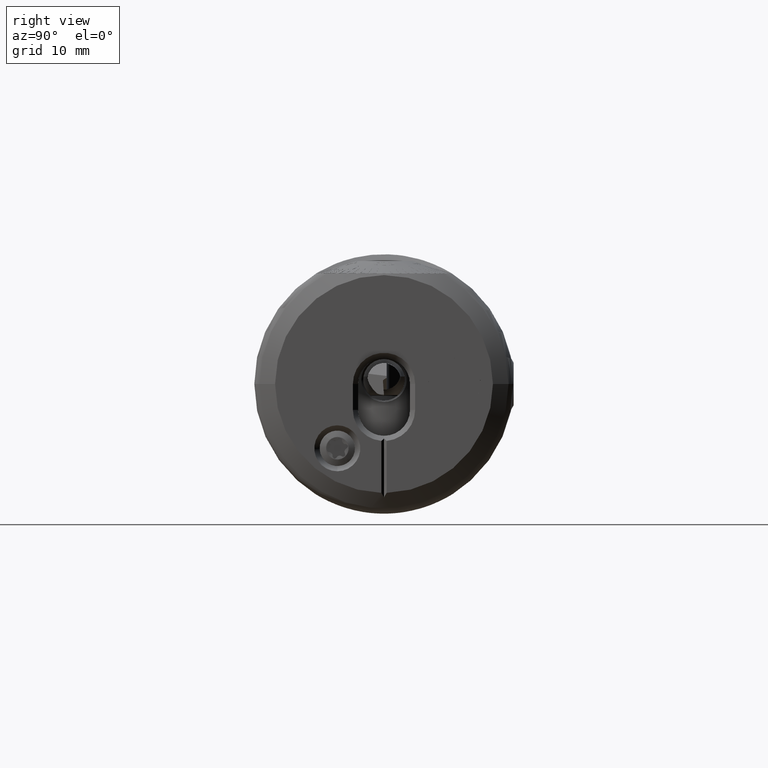
[diagram: clean part render]
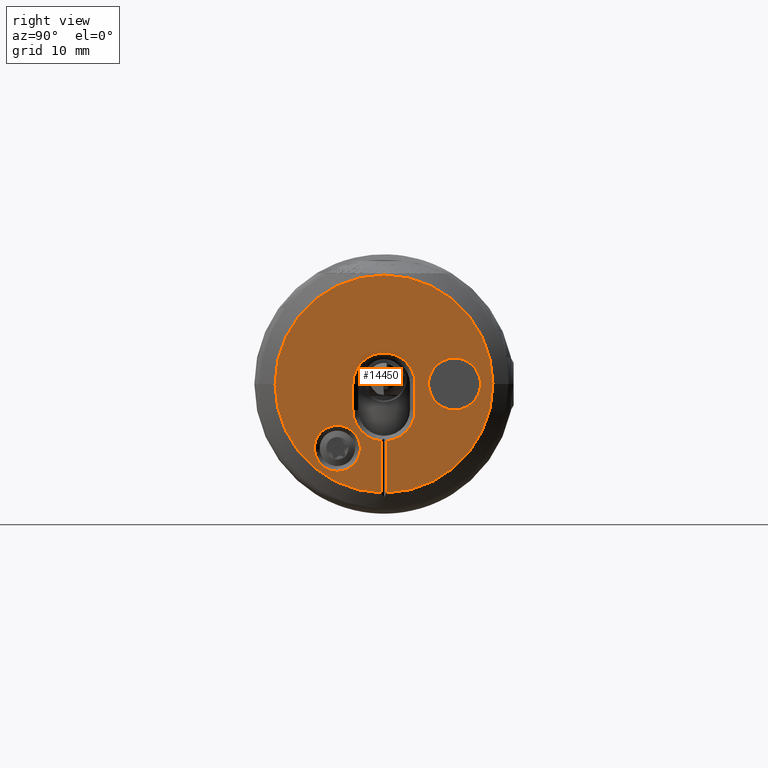
[diagram: same view with one face highlighted and labeled with its STEP entity id]
A machine part, right view. The second image highlights one B-rep face of the part: STEP entity #14450.
In plain terms, the highlighted planar face has unit normal (1, -0, 0).
Its self-contained STEP definition (entity closure, byte-faithful):
#12 = EDGE_LOOP ( 'NONE', ( #20260, #26900 ) ) ;
#275 = ORIENTED_EDGE ( 'NONE', *, *, #25261, .T. ) ;
#429 = CARTESIAN_POINT ( 'NONE',  ( -9.789515841779434600E-032, -3.000000000000009800, -1.951563910473908000E-015 ) ) ;
#894 = VERTEX_POINT ( 'NONE', #4654 ) ;
#1075 = CARTESIAN_POINT ( 'NONE',  ( 6.123031769111877700E-017, 6.799999999999999800, 0.0000000000000000000 ) ) ;
#1113 = EDGE_CURVE ( 'NONE', #28365, #12152, #9417, .T. ) ;
#1463 = CARTESIAN_POINT ( 'NONE',  ( -6.776263578034402700E-017, 0.2499999999999999400, -10.49702338760850900 ) ) ;
#1561 = EDGE_CURVE ( 'NONE', #4854, #11744, #11368, .T. ) ;
#1569 = DIRECTION ( 'NONE',  ( 1.186607980821748200E-032, 1.000000000000000000, 0.0000000000000000000 ) ) ;
#1689 = DIRECTION ( 'NONE',  ( 1.000000000000000000, -1.186607980821748300E-032, -0.0000000000000000000 ) ) ;
#1728 = ORIENTED_EDGE ( 'NONE', *, *, #3567, .T. ) ;
#1830 = EDGE_CURVE ( 'NONE', #11744, #4854, #24223, .T. ) ;
#2206 = ORIENTED_EDGE ( 'NONE', *, *, #19292, .T. ) ;
#2418 = CARTESIAN_POINT ( 'NONE',  ( 0.0000000000000000000, -0.2500000000000000600, -5.489565185775361100 ) ) ;
#2623 = CIRCLE ( 'NONE', #21409, 10.50000000000000000 ) ;
#2944 = DIRECTION ( 'NONE',  ( 0.0000000000000000000, 0.0000000000000000000, 1.000000000000000000 ) ) ;
#3014 = ORIENTED_EDGE ( 'NONE', *, *, #4875, .F. ) ;
#3016 = CARTESIAN_POINT ( 'NONE',  ( 0.0000000000000000000, -4.500000000000001800, -6.200000000000000200 ) ) ;
#3262 = ORIENTED_EDGE ( 'NONE', *, *, #27154, .T. ) ;
#3567 = EDGE_CURVE ( 'NONE', #22582, #894, #2623, .T. ) ;
#3605 = DIRECTION ( 'NONE',  ( 0.0000000000000000000, 0.0000000000000000000, -1.000000000000000000 ) ) ;
#3794 = FACE_BOUND ( 'NONE', #12, .T. ) ;
#4047 = AXIS2_PLACEMENT_3D ( 'NONE', #19571, #4602, #22072 ) ;
#4602 = DIRECTION ( 'NONE',  ( 1.000000000000000000, -1.186607980821748300E-032, -0.0000000000000000000 ) ) ;
#4654 = CARTESIAN_POINT ( 'NONE',  ( -1.245938379862835700E-031, -10.50000000000000000, 0.0000000000000000000 ) ) ;
#4854 = VERTEX_POINT ( 'NONE', #22579 ) ;
#4875 = EDGE_CURVE ( 'NONE', #6226, #30493, #17097, .T. ) ;
#4985 = ORIENTED_EDGE ( 'NONE', *, *, #23018, .T. ) ;
#5181 = LINE ( 'NONE', #8061, #30986 ) ;
#5208 = CARTESIAN_POINT ( 'NONE',  ( 6.123031769111877700E-017, 6.799999999999999800, 0.0000000000000000000 ) ) ;
#5492 = PLANE ( 'NONE',  #6372 ) ;
#6226 = VERTEX_POINT ( 'NONE', #15098 ) ;
#6258 = DIRECTION ( 'NONE',  ( -1.000000000000000000, 1.186607980821748300E-032, 0.0000000000000000000 ) ) ;
#6372 = AXIS2_PLACEMENT_3D ( 'NONE', #12949, #8023, #25501 ) ;
#6542 = CARTESIAN_POINT ( 'NONE',  ( 6.123031769111877700E-017, 6.799999999999999800, -2.499999999999996000 ) ) ;
#6589 = DIRECTION ( 'NONE',  ( 1.000000000000000000, -1.186607980821748300E-032, -0.0000000000000000000 ) ) ;
#6595 = CARTESIAN_POINT ( 'NONE',  ( -6.229691899314178600E-032, 0.0000000000000000000, -1.951563910473908000E-015 ) ) ;
#6737 = CIRCLE ( 'NONE', #4047, 10.50000000000000000 ) ;
#7297 = CARTESIAN_POINT ( 'NONE',  ( 1.245938379862835700E-031, 10.50000000000000000, 1.285879139104720800E-015 ) ) ;
#7572 = CARTESIAN_POINT ( 'NONE',  ( -2.669867956848922600E-032, 3.000000000000009800, -1.951563910473908000E-015 ) ) ;
#7733 = DIRECTION ( 'NONE',  ( 0.0000000000000000000, 0.0000000000000000000, -1.000000000000000000 ) ) ;
#8023 = DIRECTION ( 'NONE',  ( 1.000000000000000000, -1.186607980821748300E-032, -0.0000000000000000000 ) ) ;
#8061 = CARTESIAN_POINT ( 'NONE',  ( -2.669867956848922600E-032, 3.000000000000009800, -2.500000000000002200 ) ) ;
#8207 = EDGE_CURVE ( 'NONE', #26635, #28761, #18504, .T. ) ;
#9048 = LINE ( 'NONE', #18650, #14902 ) ;
#9117 = DIRECTION ( 'NONE',  ( 1.186607980821748200E-032, 1.000000000000000000, 0.0000000000000000000 ) ) ;
#9417 = LINE ( 'NONE', #21512, #30097 ) ;
#11145 = ORIENTED_EDGE ( 'NONE', *, *, #22258, .F. ) ;
#11368 = CIRCLE ( 'NONE', #24532, 2.216025403784425100 ) ;
#11744 = VERTEX_POINT ( 'NONE', #18328 ) ;
#12152 = VERTEX_POINT ( 'NONE', #29114 ) ;
#12675 = EDGE_LOOP ( 'NONE', ( #11145, #3014 ) ) ;
#12949 = CARTESIAN_POINT ( 'NONE',  ( -6.229691899314178600E-032, 7.392202125786799700E-064, 0.0000000000000000000 ) ) ;
#14450 = ADVANCED_FACE ( 'NONE', ( #3794, #22960, #17118 ), #5492, .T. ) ;
#14653 = EDGE_CURVE ( 'NONE', #31400, #12152, #25691, .T. ) ;
#14902 = VECTOR ( 'NONE', #21126, 1000.000000000000000 ) ;
#15098 = CARTESIAN_POINT ( 'NONE',  ( 6.123031769111877700E-017, 6.799999999999999800, 2.499999999999996400 ) ) ;
#15107 = CIRCLE ( 'NONE', #25120, 10.50000000000000000 ) ;
#15972 = AXIS2_PLACEMENT_3D ( 'NONE', #6595, #24067, #9117 ) ;
#16382 = VERTEX_POINT ( 'NONE', #7572 ) ;
#16609 = DIRECTION ( 'NONE',  ( -1.000000000000000000, 1.186607980821748300E-032, 0.0000000000000000000 ) ) ;
#16735 = CARTESIAN_POINT ( 'NONE',  ( 0.0000000000000000000, -6.161129402480670500E-031, 0.0000000000000000000 ) ) ;
#17097 = CIRCLE ( 'NONE', #27952, 2.499999999999996000 ) ;
#17118 = FACE_BOUND ( 'NONE', #12675, .T. ) ;
#17908 = DIRECTION ( 'NONE',  ( 0.0000000000000000000, 0.0000000000000000000, -1.000000000000000000 ) ) ;
#17951 = DIRECTION ( 'NONE',  ( 1.000000000000000000, -0.0000000000000000000, -0.0000000000000000000 ) ) ;
#18328 = CARTESIAN_POINT ( 'NONE',  ( 0.0000000000000000000, -4.500000000000001800, -3.983974596215574600 ) ) ;
#18337 = CARTESIAN_POINT ( 'NONE',  ( 0.0000000000000000000, -4.500000000000001800, -6.200000000000000200 ) ) ;
#18504 = CIRCLE ( 'NONE', #21497, 3.000000000000009800 ) ;
#18593 = CARTESIAN_POINT ( 'NONE',  ( -9.789515841779434600E-032, -3.000000000000009800, -1.951563910473908000E-015 ) ) ;
#18607 = DIRECTION ( 'NONE',  ( 1.000000000000000000, -0.0000000000000000000, -0.0000000000000000000 ) ) ;
#18650 = CARTESIAN_POINT ( 'NONE',  ( 0.0000000000000000000, -0.2500000000000000600, -12.50000000000000000 ) ) ;
#19242 = DIRECTION ( 'NONE',  ( 1.186607980821748300E-032, 1.000000000000000000, 0.0000000000000000000 ) ) ;
#19292 = EDGE_CURVE ( 'NONE', #28761, #25695, #19708, .T. ) ;
#19571 = CARTESIAN_POINT ( 'NONE',  ( 0.0000000000000000000, -6.161129402480670500E-031, 0.0000000000000000000 ) ) ;
#19708 = LINE ( 'NONE', #429, #32201 ) ;
#20260 = ORIENTED_EDGE ( 'NONE', *, *, #1561, .F. ) ;
#20294 = AXIS2_PLACEMENT_3D ( 'NONE', #1075, #18607, #3605 ) ;
#20566 = AXIS2_PLACEMENT_3D ( 'NONE', #3016, #32110, #30570 ) ;
#20760 = ORIENTED_EDGE ( 'NONE', *, *, #30949, .T. ) ;
#21110 = VERTEX_POINT ( 'NONE', #30021 ) ;
#21126 = DIRECTION ( 'NONE',  ( -0.0000000000000000000, -0.0000000000000000000, 1.000000000000000000 ) ) ;
#21195 = CARTESIAN_POINT ( 'NONE',  ( -6.229691899314178600E-032, 0.0000000000000000000, -2.500000000000002200 ) ) ;
#21409 = AXIS2_PLACEMENT_3D ( 'NONE', #16735, #1689, #19242 ) ;
#21497 = AXIS2_PLACEMENT_3D ( 'NONE', #31542, #16609, #1569 ) ;
#21512 = CARTESIAN_POINT ( 'NONE',  ( -6.776263578034402700E-017, 0.2499999999999999400, -12.50000000000000000 ) ) ;
#21531 = CARTESIAN_POINT ( 'NONE',  ( 0.0000000000000000000, -6.161129402480670500E-031, 0.0000000000000000000 ) ) ;
#21821 = ORIENTED_EDGE ( 'NONE', *, *, #31838, .T. ) ;
#21834 = DIRECTION ( 'NONE',  ( -0.0000000000000000000, -0.0000000000000000000, 1.000000000000000000 ) ) ;
#22072 = DIRECTION ( 'NONE',  ( 1.186607980821748300E-032, 1.000000000000000000, 0.0000000000000000000 ) ) ;
#22216 = CARTESIAN_POINT ( 'NONE',  ( -9.789515841779434600E-032, -3.000000000000009800, -2.500000000000001800 ) ) ;
#22258 = EDGE_CURVE ( 'NONE', #30493, #6226, #25870, .T. ) ;
#22579 = CARTESIAN_POINT ( 'NONE',  ( 0.0000000000000000000, -4.500000000000001800, -8.416025403784425800 ) ) ;
#22582 = VERTEX_POINT ( 'NONE', #7297 ) ;
#22692 = DIRECTION ( 'NONE',  ( 1.000000000000000000, -0.0000000000000000000, -0.0000000000000000000 ) ) ;
#22960 = FACE_OUTER_BOUND ( 'NONE', #28513, .T. ) ;
#23018 = EDGE_CURVE ( 'NONE', #21110, #26635, #9048, .T. ) ;
#23236 = ORIENTED_EDGE ( 'NONE', *, *, #1113, .F. ) ;
#23734 = DIRECTION ( 'NONE',  ( 1.186607980821748200E-032, 1.000000000000000000, 0.0000000000000000000 ) ) ;
#24057 = DIRECTION ( 'NONE',  ( 1.186607980821748300E-032, 1.000000000000000000, 0.0000000000000000000 ) ) ;
#24067 = DIRECTION ( 'NONE',  ( -1.000000000000000000, 1.186607980821748300E-032, 0.0000000000000000000 ) ) ;
#24223 = CIRCLE ( 'NONE', #20566, 2.216025403784425100 ) ;
#24532 = AXIS2_PLACEMENT_3D ( 'NONE', #18337, #17951, #17908 ) ;
#24770 = AXIS2_PLACEMENT_3D ( 'NONE', #21195, #6258, #23734 ) ;
#25120 = AXIS2_PLACEMENT_3D ( 'NONE', #21531, #6589, #24057 ) ;
#25261 = EDGE_CURVE ( 'NONE', #25695, #16382, #31571, .T. ) ;
#25480 = ORIENTED_EDGE ( 'NONE', *, *, #14653, .T. ) ;
#25501 = DIRECTION ( 'NONE',  ( 1.186607980821748300E-032, 1.000000000000000000, 0.0000000000000000000 ) ) ;
#25691 = CIRCLE ( 'NONE', #24770, 3.000000000000009800 ) ;
#25695 = VERTEX_POINT ( 'NONE', #18593 ) ;
#25870 = CIRCLE ( 'NONE', #20294, 2.499999999999996000 ) ;
#26635 = VERTEX_POINT ( 'NONE', #2418 ) ;
#26900 = ORIENTED_EDGE ( 'NONE', *, *, #1830, .F. ) ;
#27154 = EDGE_CURVE ( 'NONE', #28365, #22582, #15107, .T. ) ;
#27689 = ORIENTED_EDGE ( 'NONE', *, *, #8207, .T. ) ;
#27952 = AXIS2_PLACEMENT_3D ( 'NONE', #5208, #22692, #7733 ) ;
#28365 = VERTEX_POINT ( 'NONE', #1463 ) ;
#28513 = EDGE_LOOP ( 'NONE', ( #4985, #27689, #2206, #275, #20760, #25480, #23236, #3262, #1728, #21821 ) ) ;
#28761 = VERTEX_POINT ( 'NONE', #22216 ) ;
#29114 = CARTESIAN_POINT ( 'NONE',  ( -6.229691899314178600E-032, 0.2500000000000000600, -5.489565185775361100 ) ) ;
#30021 = CARTESIAN_POINT ( 'NONE',  ( 0.0000000000000000000, -0.2500000000000000600, -10.49702338760850900 ) ) ;
#30097 = VECTOR ( 'NONE', #21834, 1000.000000000000000 ) ;
#30420 = DIRECTION ( 'NONE',  ( -0.0000000000000000000, 0.0000000000000000000, -1.000000000000000000 ) ) ;
#30493 = VERTEX_POINT ( 'NONE', #6542 ) ;
#30570 = DIRECTION ( 'NONE',  ( 0.0000000000000000000, 0.0000000000000000000, -1.000000000000000000 ) ) ;
#30949 = EDGE_CURVE ( 'NONE', #16382, #31400, #5181, .T. ) ;
#30986 = VECTOR ( 'NONE', #30420, 1000.000000000000000 ) ;
#31400 = VERTEX_POINT ( 'NONE', #32246 ) ;
#31542 = CARTESIAN_POINT ( 'NONE',  ( -6.229691899314178600E-032, 0.0000000000000000000, -2.500000000000002200 ) ) ;
#31571 = CIRCLE ( 'NONE', #15972, 3.000000000000009800 ) ;
#31838 = EDGE_CURVE ( 'NONE', #894, #21110, #6737, .T. ) ;
#32110 = DIRECTION ( 'NONE',  ( 1.000000000000000000, -0.0000000000000000000, -0.0000000000000000000 ) ) ;
#32201 = VECTOR ( 'NONE', #2944, 1000.000000000000000 ) ;
#32246 = CARTESIAN_POINT ( 'NONE',  ( -2.669867956848922600E-032, 3.000000000000009800, -2.500000000000002200 ) ) ;